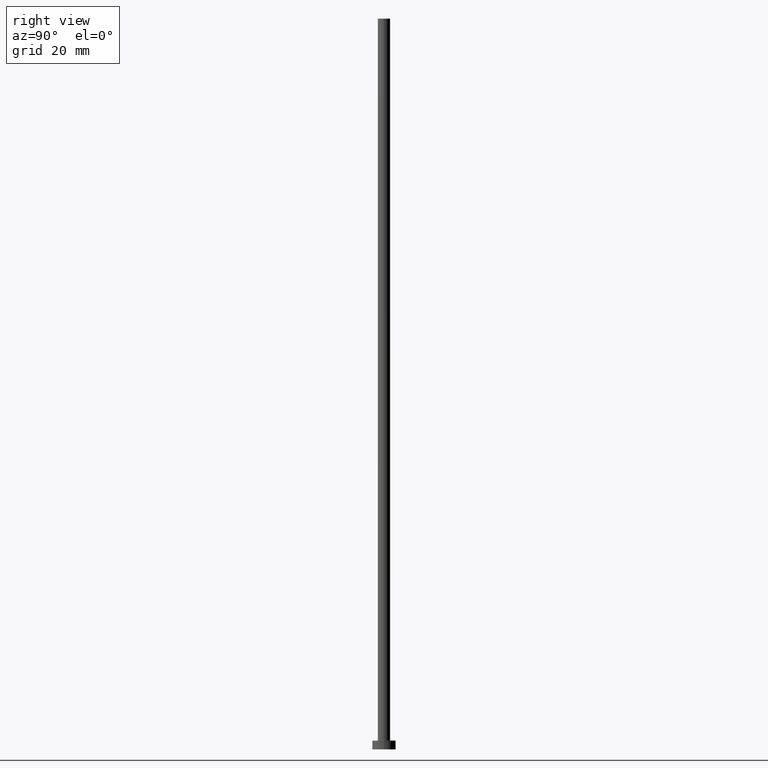
[diagram: clean part render]
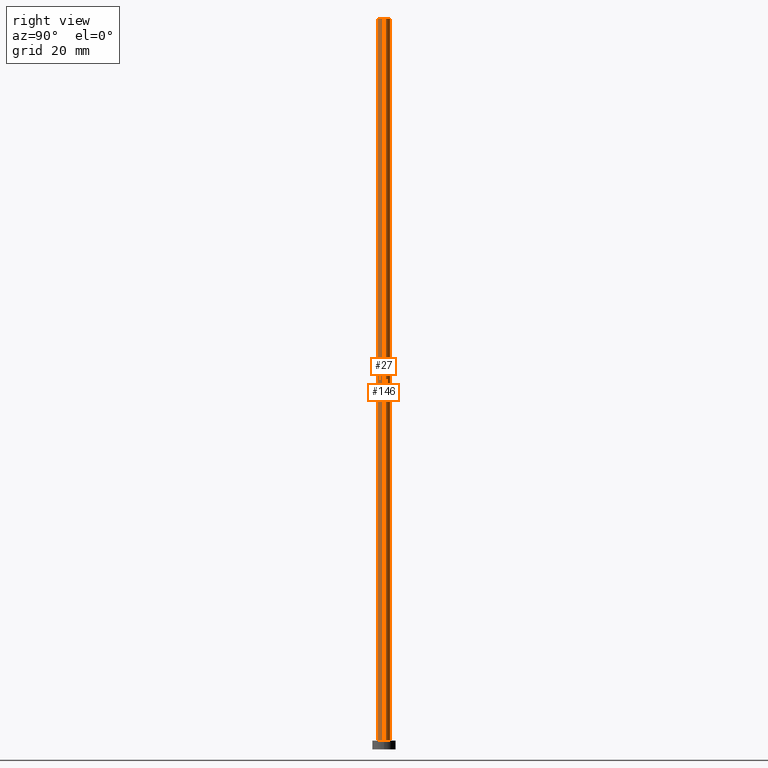
[diagram: same view with one multi-face feature highlighted, each face labeled with its STEP entity id]
A machine part, right view. The highlighted faces form ONE feature: a constant-radius fillet chain: 2 tangent blend faces with common blend radius 2.1 mm. The faces share edges in the B-rep.
Their STEP definitions:
[1] entity #146 (Cylinder):
#9 = EDGE_CURVE ( 'NONE', #200, #100, #247, .T. ) ;
#10 = CARTESIAN_POINT ( 'NONE',  ( 0.000000000000000000, 0.000000000000000000, 250.0000000000000000 ) ) ;
#14 = VERTEX_POINT ( 'NONE', #118 ) ;
#22 = AXIS2_PLACEMENT_3D ( 'NONE', #131, #217, #33 ) ;
#29 = LINE ( 'NONE', #214, #239 ) ;
#31 = EDGE_LOOP ( 'NONE', ( #60, #204, #152, #165 ) ) ;
#33 = DIRECTION ( 'NONE',  ( 1.000000000000000000, 0.000000000000000000, 0.000000000000000000 ) ) ;
#36 = DIRECTION ( 'NONE',  ( -0.000000000000000000, -0.000000000000000000, -1.000000000000000000 ) ) ;
#42 = FACE_OUTER_BOUND ( 'NONE', #31, .T. ) ;
#60 = ORIENTED_EDGE ( 'NONE', *, *, #94, .F. ) ;
#73 = DIRECTION ( 'NONE',  ( -0.000000000000000000, -0.000000000000000000, -1.000000000000000000 ) ) ;
#91 = LINE ( 'NONE', #208, #104 ) ;
#94 = EDGE_CURVE ( 'NONE', #14, #253, #125, .T. ) ;
#100 = VERTEX_POINT ( 'NONE', #227 ) ;
#104 = VECTOR ( 'NONE', #73, 1000.000000000000000 ) ;
#105 = DIRECTION ( 'NONE',  ( 1.000000000000000000, 0.000000000000000000, 0.000000000000000000 ) ) ;
#118 = CARTESIAN_POINT ( 'NONE',  ( 2.100000000000000089, 2.571758278209441957E-16, 250.0000000000000000 ) ) ;
#120 = AXIS2_PLACEMENT_3D ( 'NONE', #10, #226, #105 ) ;
#125 = CIRCLE ( 'NONE', #120, 2.100000000000000089 ) ;
#130 = CARTESIAN_POINT ( 'NONE',  ( 2.100000000000000089, 2.571758278209441957E-16, 3.000000000000000000 ) ) ;
#131 = CARTESIAN_POINT ( 'NONE',  ( 0.000000000000000000, 0.000000000000000000, 3.000000000000000000 ) ) ;
#143 = CARTESIAN_POINT ( 'NONE',  ( -2.100000000000000089, 0.000000000000000000, 250.0000000000000000 ) ) ;
#146 = ADVANCED_FACE ( 'NONE', ( #42 ), #154, .T. ) ;
#152 = ORIENTED_EDGE ( 'NONE', *, *, #9, .T. ) ;
#154 = CYLINDRICAL_SURFACE ( 'NONE', #251, 2.100000000000000089 ) ;
#165 = ORIENTED_EDGE ( 'NONE', *, *, #189, .F. ) ;
#189 = EDGE_CURVE ( 'NONE', #253, #100, #29, .T. ) ;
#194 = DIRECTION ( 'NONE',  ( -0.000000000000000000, -0.000000000000000000, -1.000000000000000000 ) ) ;
#200 = VERTEX_POINT ( 'NONE', #130 ) ;
#204 = ORIENTED_EDGE ( 'NONE', *, *, #231, .T. ) ;
#208 = CARTESIAN_POINT ( 'NONE',  ( 2.100000000000000089, 2.571758278209441957E-16, 250.0000000000000000 ) ) ;
#214 = CARTESIAN_POINT ( 'NONE',  ( -2.100000000000000089, 0.000000000000000000, 250.0000000000000000 ) ) ;
#217 = DIRECTION ( 'NONE',  ( 0.000000000000000000, 0.000000000000000000, 1.000000000000000000 ) ) ;
#220 = DIRECTION ( 'NONE',  ( -1.000000000000000000, 0.000000000000000000, 0.000000000000000000 ) ) ;
#226 = DIRECTION ( 'NONE',  ( 0.000000000000000000, 0.000000000000000000, 1.000000000000000000 ) ) ;
#227 = CARTESIAN_POINT ( 'NONE',  ( -2.100000000000000089, 0.000000000000000000, 3.000000000000000000 ) ) ;
#231 = EDGE_CURVE ( 'NONE', #14, #200, #91, .T. ) ;
#239 = VECTOR ( 'NONE', #194, 1000.000000000000000 ) ;
#242 = CARTESIAN_POINT ( 'NONE',  ( 0.000000000000000000, 0.000000000000000000, 250.0000000000000000 ) ) ;
#247 = CIRCLE ( 'NONE', #22, 2.100000000000000089 ) ;
#251 = AXIS2_PLACEMENT_3D ( 'NONE', #242, #36, #220 ) ;
#253 = VERTEX_POINT ( 'NONE', #143 ) ;
[2] entity #27 (Cylinder):
#4 = CIRCLE ( 'NONE', #167, 2.100000000000000089 ) ;
#14 = VERTEX_POINT ( 'NONE', #118 ) ;
#16 = ORIENTED_EDGE ( 'NONE', *, *, #189, .T. ) ;
#17 = CYLINDRICAL_SURFACE ( 'NONE', #244, 2.100000000000000089 ) ;
#27 = ADVANCED_FACE ( 'NONE', ( #144 ), #17, .T. ) ;
#28 = DIRECTION ( 'NONE',  ( 0.000000000000000000, 0.000000000000000000, 1.000000000000000000 ) ) ;
#29 = LINE ( 'NONE', #214, #239 ) ;
#30 = EDGE_CURVE ( 'NONE', #253, #14, #4, .T. ) ;
#61 = CARTESIAN_POINT ( 'NONE',  ( 0.000000000000000000, 0.000000000000000000, 250.0000000000000000 ) ) ;
#73 = DIRECTION ( 'NONE',  ( -0.000000000000000000, -0.000000000000000000, -1.000000000000000000 ) ) ;
#76 = EDGE_CURVE ( 'NONE', #100, #200, #95, .T. ) ;
#80 = CARTESIAN_POINT ( 'NONE',  ( 0.000000000000000000, 0.000000000000000000, 250.0000000000000000 ) ) ;
#82 = DIRECTION ( 'NONE',  ( -1.000000000000000000, 0.000000000000000000, 0.000000000000000000 ) ) ;
#91 = LINE ( 'NONE', #208, #104 ) ;
#95 = CIRCLE ( 'NONE', #159, 2.100000000000000089 ) ;
#100 = VERTEX_POINT ( 'NONE', #227 ) ;
#104 = VECTOR ( 'NONE', #73, 1000.000000000000000 ) ;
#112 = ORIENTED_EDGE ( 'NONE', *, *, #30, .F. ) ;
#116 = ORIENTED_EDGE ( 'NONE', *, *, #231, .F. ) ;
#118 = CARTESIAN_POINT ( 'NONE',  ( 2.100000000000000089, 2.571758278209441957E-16, 250.0000000000000000 ) ) ;
#130 = CARTESIAN_POINT ( 'NONE',  ( 2.100000000000000089, 2.571758278209441957E-16, 3.000000000000000000 ) ) ;
#132 = CARTESIAN_POINT ( 'NONE',  ( 0.000000000000000000, 0.000000000000000000, 3.000000000000000000 ) ) ;
#133 = DIRECTION ( 'NONE',  ( -0.000000000000000000, -0.000000000000000000, -1.000000000000000000 ) ) ;
#143 = CARTESIAN_POINT ( 'NONE',  ( -2.100000000000000089, 0.000000000000000000, 250.0000000000000000 ) ) ;
#144 = FACE_OUTER_BOUND ( 'NONE', #163, .T. ) ;
#159 = AXIS2_PLACEMENT_3D ( 'NONE', #132, #28, #254 ) ;
#162 = ORIENTED_EDGE ( 'NONE', *, *, #76, .T. ) ;
#163 = EDGE_LOOP ( 'NONE', ( #116, #112, #16, #162 ) ) ;
#167 = AXIS2_PLACEMENT_3D ( 'NONE', #61, #218, #205 ) ;
#189 = EDGE_CURVE ( 'NONE', #253, #100, #29, .T. ) ;
#194 = DIRECTION ( 'NONE',  ( -0.000000000000000000, -0.000000000000000000, -1.000000000000000000 ) ) ;
#200 = VERTEX_POINT ( 'NONE', #130 ) ;
#205 = DIRECTION ( 'NONE',  ( 1.000000000000000000, 0.000000000000000000, 0.000000000000000000 ) ) ;
#208 = CARTESIAN_POINT ( 'NONE',  ( 2.100000000000000089, 2.571758278209441957E-16, 250.0000000000000000 ) ) ;
#214 = CARTESIAN_POINT ( 'NONE',  ( -2.100000000000000089, 0.000000000000000000, 250.0000000000000000 ) ) ;
#218 = DIRECTION ( 'NONE',  ( 0.000000000000000000, 0.000000000000000000, 1.000000000000000000 ) ) ;
#227 = CARTESIAN_POINT ( 'NONE',  ( -2.100000000000000089, 0.000000000000000000, 3.000000000000000000 ) ) ;
#231 = EDGE_CURVE ( 'NONE', #14, #200, #91, .T. ) ;
#239 = VECTOR ( 'NONE', #194, 1000.000000000000000 ) ;
#244 = AXIS2_PLACEMENT_3D ( 'NONE', #80, #133, #82 ) ;
#253 = VERTEX_POINT ( 'NONE', #143 ) ;
#254 = DIRECTION ( 'NONE',  ( 1.000000000000000000, 0.000000000000000000, 0.000000000000000000 ) ) ;